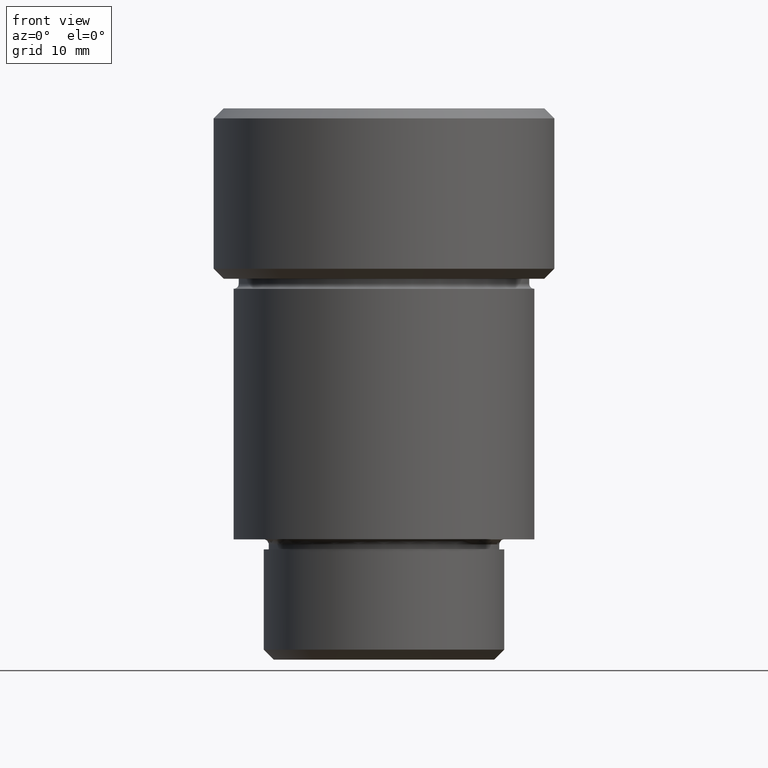
[diagram: clean part render]
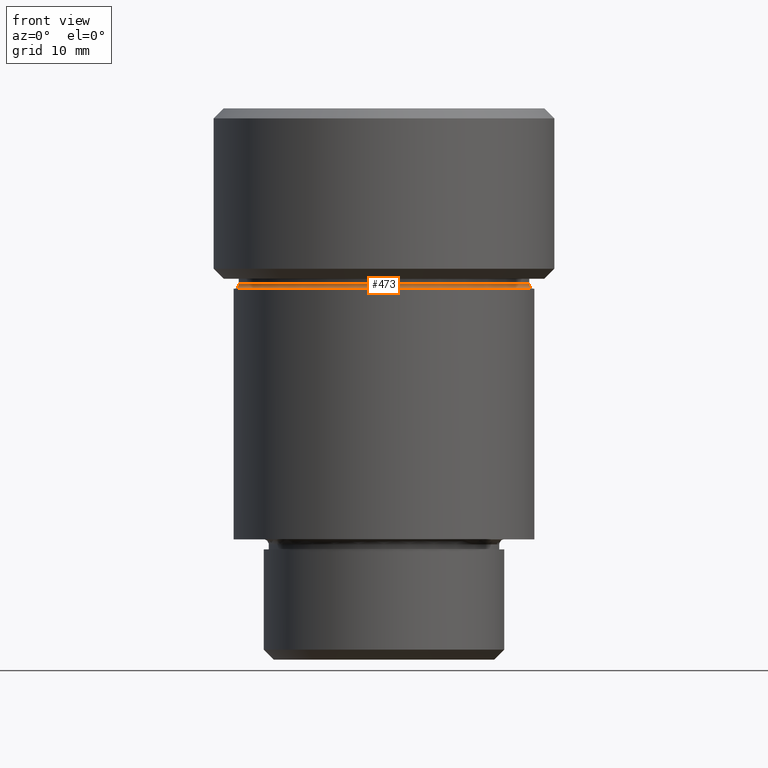
[diagram: same view with one face highlighted and labeled with its STEP entity id]
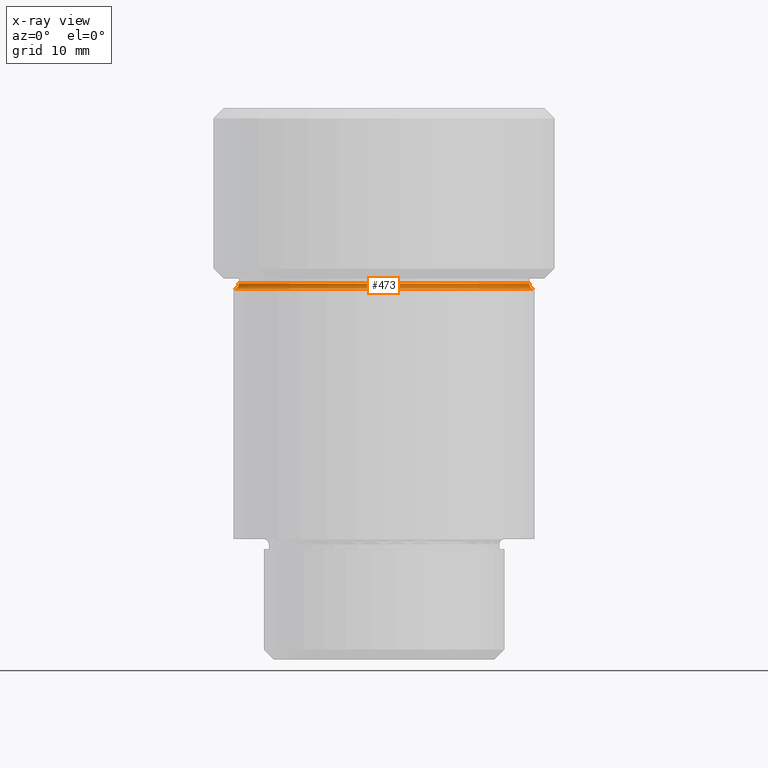
[diagram: x-ray of the same camera — body ghosted, the highlighted face saturated]
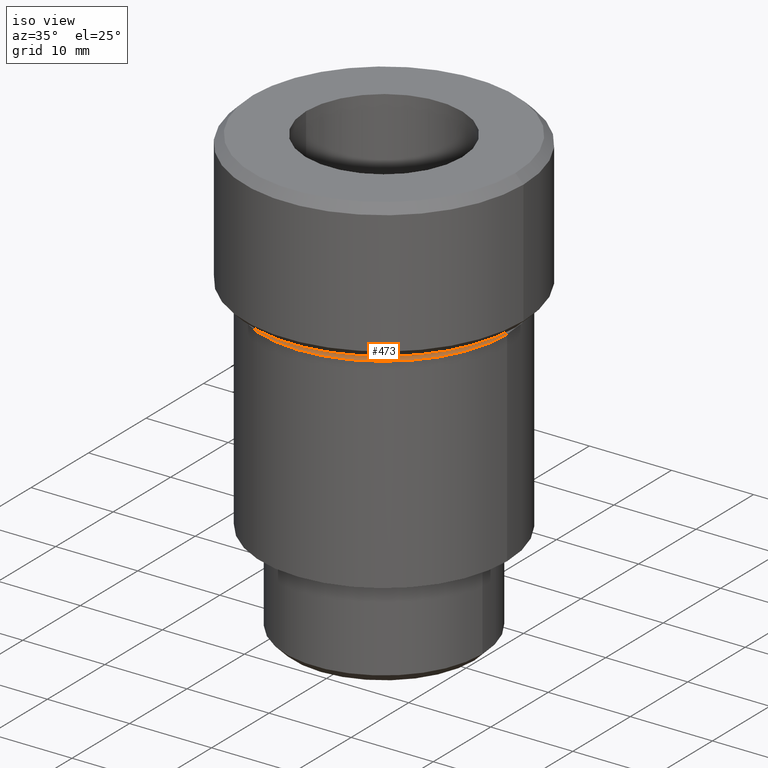
[diagram: same view with one face highlighted and labeled with its STEP entity id]
A machine part, front view. The second image highlights one B-rep face of the part: STEP entity #473.
The next image is the same camera in x-ray: the body ghosted, the highlighted face saturated — about 0% of this face is hidden behind the body in this view.
A second angle (iso view) of the same face is appended — the face is thin or edge-on in the first view.
In plain terms, the highlighted toroidal blend (fillet) surface has major radius 15 mm and minor (blend) radius 0.5 mm.
Its self-contained STEP definition (entity closure, byte-faithful):
#18 = EDGE_CURVE ( 'NONE', #225, #73, #270, .T. ) ;
#29 = ORIENTED_EDGE ( 'NONE', *, *, #18, .F. ) ;
#33 = CIRCLE ( 'NONE', #460, 0.5000000000000004441 ) ;
#64 = DIRECTION ( 'NONE',  ( -0.000000000000000000, -0.000000000000000000, 1.000000000000000000 ) ) ;
#73 = VERTEX_POINT ( 'NONE', #278 ) ;
#126 = CARTESIAN_POINT ( 'NONE',  ( 15.00000000000000000, 0.000000000000000000, -17.49999999999999645 ) ) ;
#133 = TOROIDAL_SURFACE ( 'NONE', #758, 15.00000000000000000, 0.5000000000000000000 ) ;
#195 = FACE_OUTER_BOUND ( 'NONE', #488, .T. ) ;
#225 = VERTEX_POINT ( 'NONE', #416 ) ;
#266 = CARTESIAN_POINT ( 'NONE',  ( -15.00000000000000000, 1.836970198721029589E-15, -17.49999999999999645 ) ) ;
#270 = CIRCLE ( 'NONE', #781, 14.49999999999999822 ) ;
#278 = CARTESIAN_POINT ( 'NONE',  ( 14.49999999999999822, 0.000000000000000000, -17.49999999999999645 ) ) ;
#301 = EDGE_CURVE ( 'NONE', #419, #362, #484, .T. ) ;
#303 = DIRECTION ( 'NONE',  ( 1.000000000000000000, 0.000000000000000000, 0.000000000000000000 ) ) ;
#306 = DIRECTION ( 'NONE',  ( 0.000000000000000000, -1.000000000000000000, 0.000000000000000000 ) ) ;
#334 = AXIS2_PLACEMENT_3D ( 'NONE', #364, #610, #601 ) ;
#362 = VERTEX_POINT ( 'NONE', #790 ) ;
#363 = CARTESIAN_POINT ( 'NONE',  ( -15.00000000000000000, 1.836970198721029983E-15, -18.00000000000000000 ) ) ;
#364 = CARTESIAN_POINT ( 'NONE',  ( 0.000000000000000000, 0.000000000000000000, -18.00000000000000000 ) ) ;
#392 = EDGE_CURVE ( 'NONE', #73, #362, #33, .T. ) ;
#412 = ORIENTED_EDGE ( 'NONE', *, *, #392, .F. ) ;
#416 = CARTESIAN_POINT ( 'NONE',  ( -14.49999999999999822, 1.775737858763662015E-15, -17.49999999999999645 ) ) ;
#419 = VERTEX_POINT ( 'NONE', #363 ) ;
#452 = DIRECTION ( 'NONE',  ( 1.000000000000000000, 0.000000000000000000, 0.000000000000000000 ) ) ;
#454 = DIRECTION ( 'NONE',  ( 1.224646799147353207E-16, 1.000000000000000000, 0.000000000000000000 ) ) ;
#460 = AXIS2_PLACEMENT_3D ( 'NONE', #126, #306, #609 ) ;
#473 = ADVANCED_FACE ( 'NONE', ( #195 ), #133, .F. ) ;
#484 = CIRCLE ( 'NONE', #334, 15.00000000000000000 ) ;
#488 = EDGE_LOOP ( 'NONE', ( #29, #513, #655, #412 ) ) ;
#513 = ORIENTED_EDGE ( 'NONE', *, *, #543, .T. ) ;
#543 = EDGE_CURVE ( 'NONE', #225, #419, #577, .T. ) ;
#577 = CIRCLE ( 'NONE', #727, 0.5000000000000004441 ) ;
#601 = DIRECTION ( 'NONE',  ( 1.000000000000000000, 0.000000000000000000, 0.000000000000000000 ) ) ;
#605 = CARTESIAN_POINT ( 'NONE',  ( 0.000000000000000000, 0.000000000000000000, -17.49999999999999645 ) ) ;
#609 = DIRECTION ( 'NONE',  ( 0.000000000000000000, 0.000000000000000000, -1.000000000000000000 ) ) ;
#610 = DIRECTION ( 'NONE',  ( -0.000000000000000000, -0.000000000000000000, 1.000000000000000000 ) ) ;
#636 = DIRECTION ( 'NONE',  ( -0.000000000000000000, -0.000000000000000000, 1.000000000000000000 ) ) ;
#655 = ORIENTED_EDGE ( 'NONE', *, *, #301, .T. ) ;
#689 = DIRECTION ( 'NONE',  ( -1.000000000000000000, 1.224646799147349509E-16, 0.000000000000000000 ) ) ;
#727 = AXIS2_PLACEMENT_3D ( 'NONE', #266, #454, #689 ) ;
#758 = AXIS2_PLACEMENT_3D ( 'NONE', #605, #64, #303 ) ;
#760 = CARTESIAN_POINT ( 'NONE',  ( 0.000000000000000000, 0.000000000000000000, -17.49999999999999645 ) ) ;
#781 = AXIS2_PLACEMENT_3D ( 'NONE', #760, #636, #452 ) ;
#790 = CARTESIAN_POINT ( 'NONE',  ( 15.00000000000000000, 0.000000000000000000, -18.00000000000000000 ) ) ;